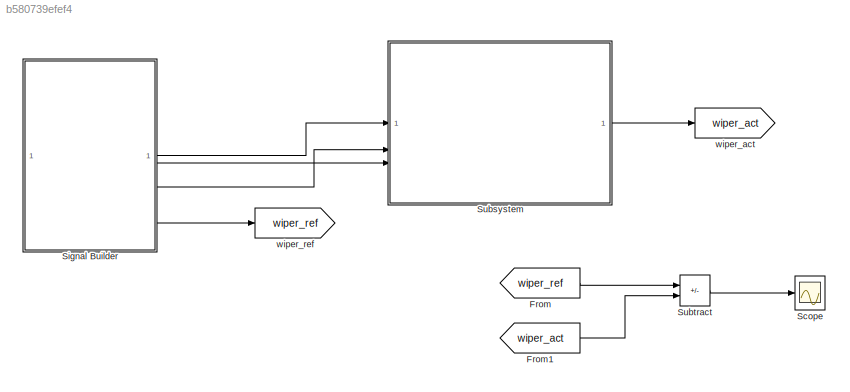
MODEL slx_b580739efef4
KIND model
CONFIG AbsTol = auto
CONFIG EnableMultiTasking = off
CONFIG FixedStep = 0.01
CONFIG MaxStep = auto
CONFIG MinStep = auto
CONFIG RelTol = 1e-3
CONFIG SampleTimeConstraint = Unconstrained
CONFIG SolverName = FixedStepAuto
CONFIG StartTime = 0.0
CONFIG StopTime = 7.0
BLOCK [From] From
  GotoTag = wiper_ref
BLOCK [From] From1
  GotoTag = wiper_act
BLOCK [Scope] Scope
  Floating = off
  NumInputPorts = 1
  ScopeSpecificationString = Simulink.scopes.TimeScopeBlockCfg('CurrentConfiguration', extmgr.ConfigurationSet(extmgr.Configuration('Core','General UI',true),extmgr.Configuration('Core','Source UI',true),extmgr.Configuration('Sources','WiredSimulink',true),extmgr.Configuration('Visuals','Time Domain',true,'SerializedDisplays',{struct('MinYLimReal','-1.00000','MaxYLimReal','1.00000','YLabelReal','','MinYLimMag','0.00000','MaxY...<+1355ch>
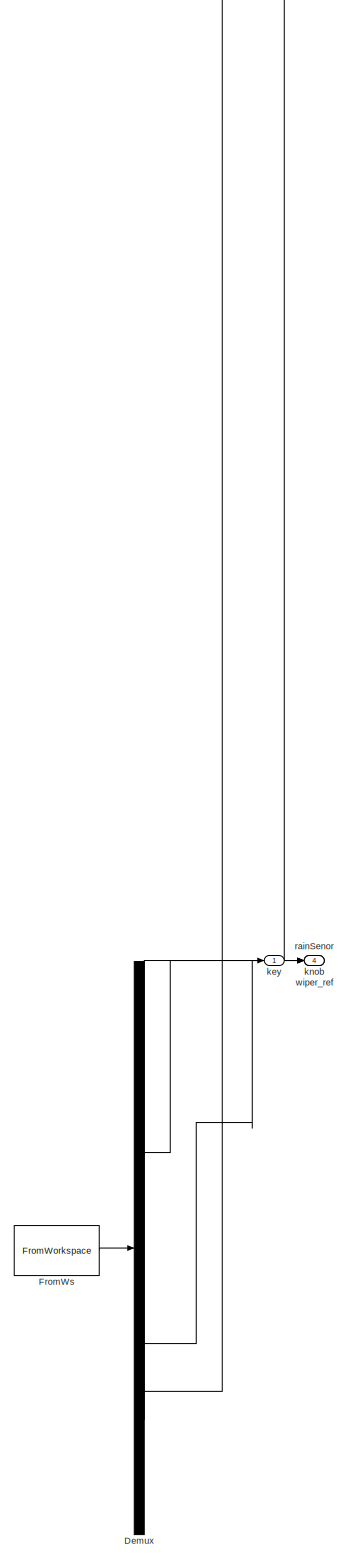
[diagram: Signal Builder - part 1/1, full width, bottom band]
BLOCK [SubSystem] Signal Builder
  ClipboardFcn = sigbuilder_block('clipboard');
  CloseFcn = sigbuilder_block('close');
  ContinueFcn = sigbuilder_block('continue');
  CopyFcn = sigbuilder_block('copy');
  DeleteFcn = sigbuilder_block('delete');
  LoadFcn = sigbuilder_block('load');
  MaskHideContents = on
  ModelCloseFcn = sigbuilder_block('modelClose');
  NameChangeFcn = sigbuilder_block('namechange');
  OpenFcn = sigbuilder_block('open',[6 30 1012.5 447.75 ]);
  PauseFcn = sigbuilder_block('pause');
  PreSaveFcn = sigbuilder_block('preSave');
  StartFcn = sigbuilder_block('start');
  StopFcn = sigbuilder_block('stop');
  Tag = STV Subsys
BLOCK [Demux] Signal Builder/Demux
  DisplayOption = none
  Tag = STV Demux
BLOCK [FromWorkspace] Signal Builder/FromWs
  Tag = STV FromWs
  VariableName = tuvar
BLOCK [Outport] Signal Builder/key
  Tag = STV Outport
BLOCK [Outport] Signal Builder/knob
  Port = 2
  Tag = STV Outport
BLOCK [Outport] Signal Builder/rainSenor
  Port = 3
  Tag = STV Outport
BLOCK [Outport] Signal Builder/wiper_ref
  Port = 4
  Tag = STV Outport
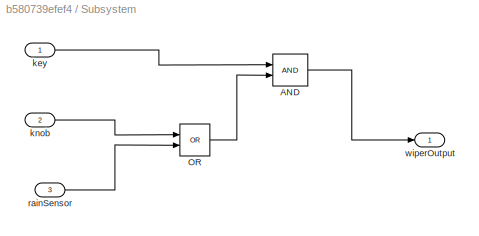
BLOCK [SubSystem] Subsystem
BLOCK [Logic] Subsystem/AND
  AllPortsSameDT = off
  IconShape = distinctive
  OutDataTypeStr = boolean
BLOCK [Logic] Subsystem/OR
  AllPortsSameDT = off
  IconShape = distinctive
  Operator = OR
  OutDataTypeStr = boolean
BLOCK [Inport] Subsystem/key
BLOCK [Inport] Subsystem/knob
  Port = 2
BLOCK [Inport] Subsystem/rainSensor
  Port = 3
BLOCK [Outport] Subsystem/wiperOutput
BLOCK [Sum] Subtract
  IconShape = rectangular
  Inputs = +-
BLOCK [Goto] wiper_act
  GotoTag = wiper_act
BLOCK [Goto] wiper_ref
  GotoTag = wiper_ref
LINE From1:1 -> Subtract:2
LINE From:1 -> Subtract:1
LINE Signal Builder:1 -> Subsystem:1
LINE Signal Builder:2 -> Subsystem:2
LINE Signal Builder:3 -> Subsystem:3
LINE Signal Builder:4 -> wiper_ref:1
LINE Subsystem/AND:1 -> Subsystem/wiperOutput:1
LINE Subsystem/OR:1 -> Subsystem/AND:2
LINE Subsystem/key:1 -> Subsystem/AND:1
LINE Subsystem/knob:1 -> Subsystem/OR:1
LINE Subsystem/rainSensor:1 -> Subsystem/OR:2
LINE Subsystem:1 -> wiper_act:1
LINE Subtract:1 -> Scope:1
